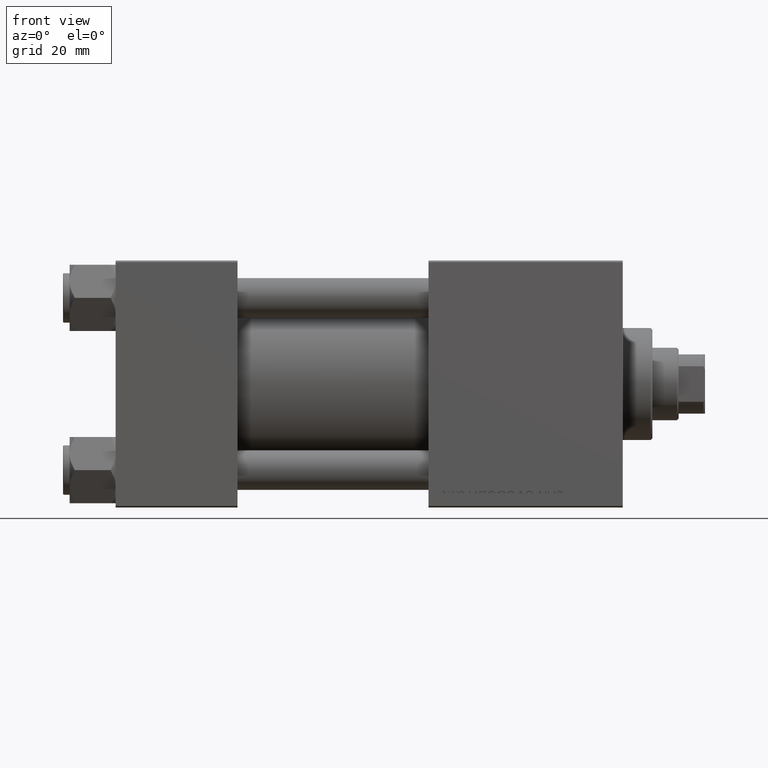
[diagram: clean part render]
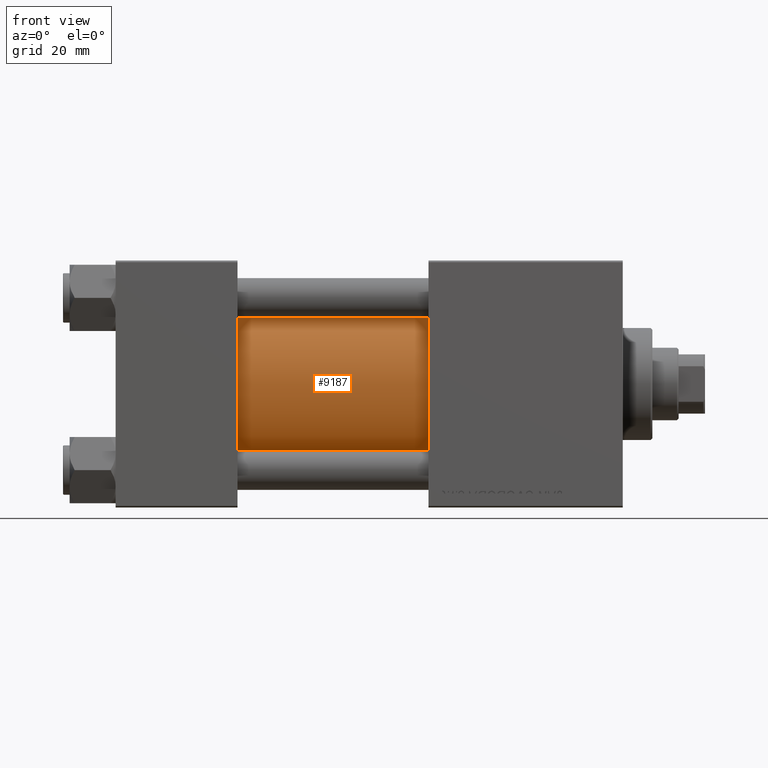
[diagram: same view with one face highlighted and labeled with its STEP entity id]
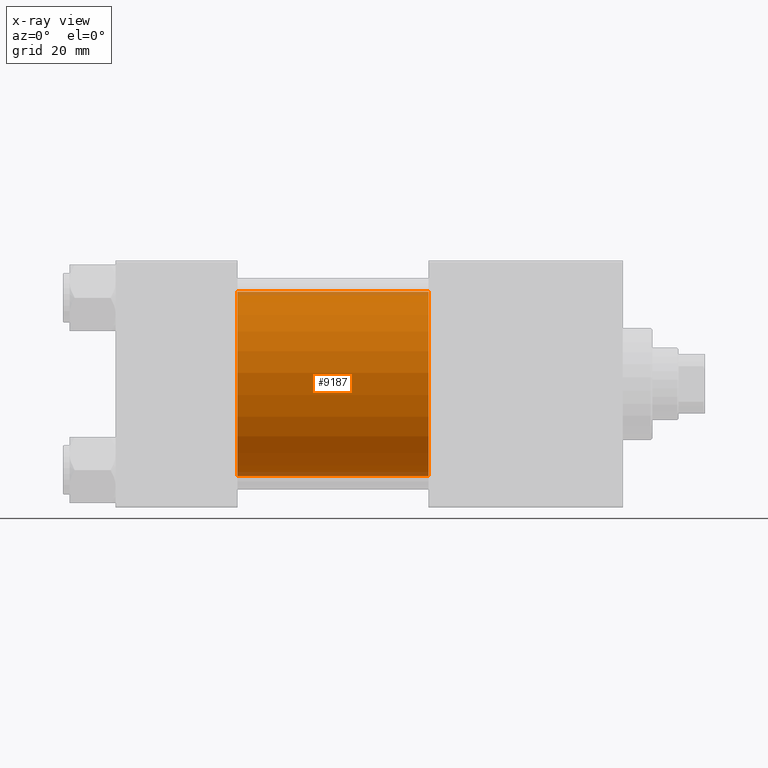
[diagram: x-ray of the same camera — body ghosted, the highlighted face saturated]
A machine part, front view. The second image highlights one B-rep face of the part: STEP entity #9187.
The next image is the same camera in x-ray: the body ghosted, the highlighted face saturated — about 4% of this face is hidden behind the body in this view.
In plain terms, the highlighted cylindrical surface (partial cylindrical patch) has radius 28 mm, axis along (-1, -0, -0).
Its self-contained STEP definition (entity closure, byte-faithful):
#804 = VERTEX_POINT ( 'NONE', #28947 ) ;
#1374 = DIRECTION ( 'NONE',  ( -1.000000000000000000, -0.000000000000000000, -0.000000000000000000 ) ) ;
#2975 = LINE ( 'NONE', #7030, #42712 ) ;
#3044 = CARTESIAN_POINT ( 'NONE',  ( 37.00000000000000000, -2.602085213965210642E-15, 28.00000000000000000 ) ) ;
#3237 = DIRECTION ( 'NONE',  ( 1.000000000000000000, -0.000000000000000000, 0.000000000000000000 ) ) ;
#4338 = DIRECTION ( 'NONE',  ( -1.000000000000000000, -0.000000000000000000, -0.000000000000000000 ) ) ;
#5017 = VECTOR ( 'NONE', #4338, 1000.000000000000000 ) ;
#5575 = CIRCLE ( 'NONE', #50166, 28.00000000000000000 ) ;
#7030 = CARTESIAN_POINT ( 'NONE',  ( 95.00000000000000000, 8.269258236473776482E-16, -28.00000000000000000 ) ) ;
#8889 = LINE ( 'NONE', #47220, #5017 ) ;
#9187 = ADVANCED_FACE ( 'NONE', ( #39973 ), #20650, .T. ) ;
#11840 = DIRECTION ( 'NONE',  ( 0.000000000000000000, 0.000000000000000000, 1.000000000000000000 ) ) ;
#11976 = CARTESIAN_POINT ( 'NONE',  ( 95.00000000000000000, -2.602085213965210642E-15, 28.00000000000000000 ) ) ;
#12777 = CARTESIAN_POINT ( 'NONE',  ( 95.00000000000000000, -2.602085213965210642E-15, 0.000000000000000000 ) ) ;
#16775 = EDGE_CURVE ( 'NONE', #25309, #44751, #8889, .T. ) ;
#16845 = CARTESIAN_POINT ( 'NONE',  ( 95.00000000000000000, 8.269258236473776482E-16, -28.00000000000000000 ) ) ;
#19359 = CIRCLE ( 'NONE', #24214, 28.00000000000000000 ) ;
#20088 = ORIENTED_EDGE ( 'NONE', *, *, #28695, .T. ) ;
#20650 = CYLINDRICAL_SURFACE ( 'NONE', #22709, 28.00000000000000000 ) ;
#22709 = AXIS2_PLACEMENT_3D ( 'NONE', #35905, #1374, #47840 ) ;
#22952 = EDGE_CURVE ( 'NONE', #43094, #804, #2975, .T. ) ;
#24214 = AXIS2_PLACEMENT_3D ( 'NONE', #45862, #3237, #11840 ) ;
#24484 = ORIENTED_EDGE ( 'NONE', *, *, #22952, .F. ) ;
#25309 = VERTEX_POINT ( 'NONE', #11976 ) ;
#26554 = DIRECTION ( 'NONE',  ( -1.000000000000000000, -0.000000000000000000, -0.000000000000000000 ) ) ;
#28695 = EDGE_CURVE ( 'NONE', #44751, #804, #19359, .T. ) ;
#28947 = CARTESIAN_POINT ( 'NONE',  ( 37.00000000000000000, 8.269258236473776482E-16, -28.00000000000000000 ) ) ;
#31574 = DIRECTION ( 'NONE',  ( 1.000000000000000000, 0.000000000000000000, 0.000000000000000000 ) ) ;
#32196 = EDGE_CURVE ( 'NONE', #25309, #43094, #5575, .T. ) ;
#35829 = ORIENTED_EDGE ( 'NONE', *, *, #32196, .F. ) ;
#35905 = CARTESIAN_POINT ( 'NONE',  ( 95.00000000000000000, -2.602085213965210642E-15, 0.000000000000000000 ) ) ;
#38475 = EDGE_LOOP ( 'NONE', ( #24484, #35829, #39288, #20088 ) ) ;
#39288 = ORIENTED_EDGE ( 'NONE', *, *, #16775, .T. ) ;
#39446 = DIRECTION ( 'NONE',  ( 0.000000000000000000, 0.000000000000000000, -1.000000000000000000 ) ) ;
#39973 = FACE_OUTER_BOUND ( 'NONE', #38475, .T. ) ;
#42712 = VECTOR ( 'NONE', #26554, 1000.000000000000000 ) ;
#43094 = VERTEX_POINT ( 'NONE', #16845 ) ;
#44751 = VERTEX_POINT ( 'NONE', #3044 ) ;
#45862 = CARTESIAN_POINT ( 'NONE',  ( 37.00000000000000000, -2.602085213965210642E-15, 0.000000000000000000 ) ) ;
#47220 = CARTESIAN_POINT ( 'NONE',  ( 95.00000000000000000, -2.602085213965210642E-15, 28.00000000000000000 ) ) ;
#47840 = DIRECTION ( 'NONE',  ( 0.000000000000000000, 0.000000000000000000, 1.000000000000000000 ) ) ;
#50166 = AXIS2_PLACEMENT_3D ( 'NONE', #12777, #31574, #39446 ) ;